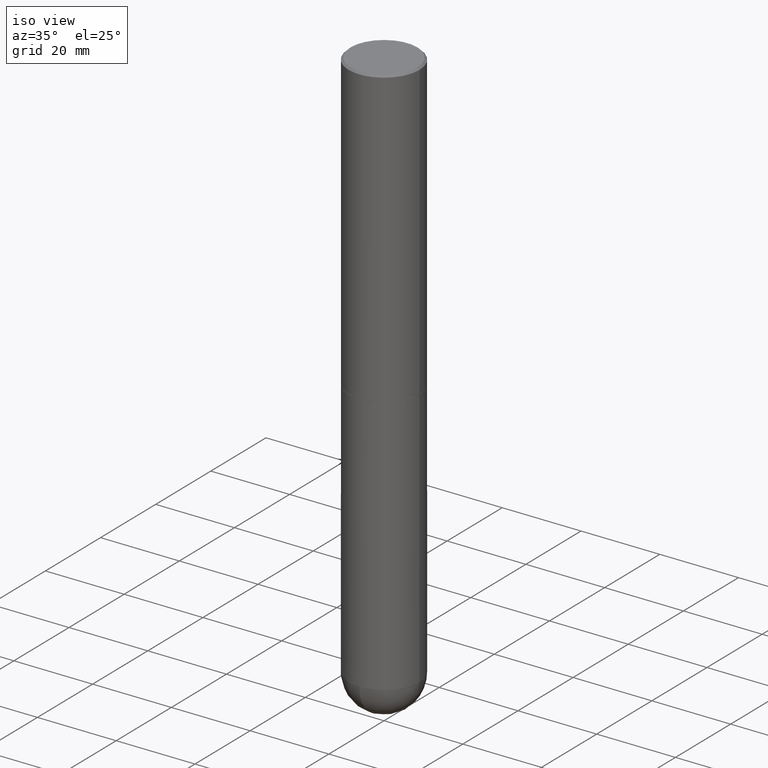
[diagram: clean part render]
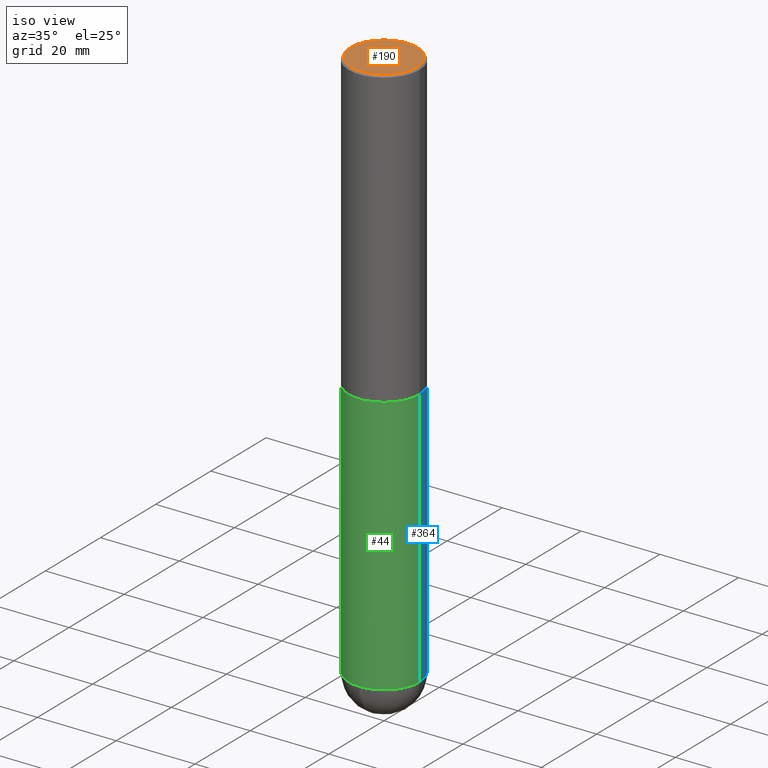
[diagram: same view with three faces highlighted in distinct colors, each labeled with its STEP entity id]
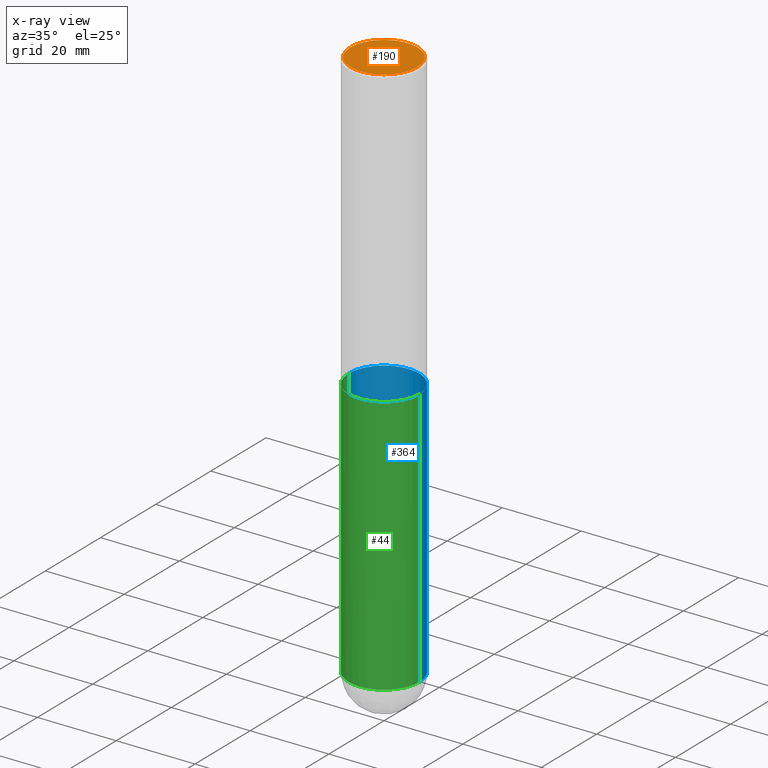
[diagram: x-ray of the same camera — body ghosted, the three highlighted faces saturated]
A machine part, iso view with three faces highlighted in distinct colors.
The next image is the same camera in x-ray (body ghosted, the three faces saturated) — at least one of them is partly hidden behind the body in this view.
Their STEP definitions:

[orange] entity #190 — the highlighted planar face has unit normal (0, -0, -1).
#3 = AXIS2_PLACEMENT_3D ( 'NONE', #348, #240, #249 ) ;
#23 = CARTESIAN_POINT ( 'NONE',  ( 0.3343500000000000916, -2.397327298921059104E-15, -7.683322482179085543E-17 ) ) ;
#24 = DIRECTION ( 'NONE',  ( -2.445468806185136597E-29, 3.491481338843145583E-15, 1.000000000000000000 ) ) ;
#29 = EDGE_CURVE ( 'NONE', #263, #80, #273, .T. ) ;
#80 = VERTEX_POINT ( 'NONE', #23 ) ;
#127 = DIRECTION ( 'NONE',  ( 1.000000000000000000, -6.982962677686267499E-15, 4.875777752381876907E-29 ) ) ;
#133 = DIRECTION ( 'NONE',  ( -1.000000000000000000, 6.982962677686265922E-15, -4.876176775795935793E-29 ) ) ;
#157 = AXIS2_PLACEMENT_3D ( 'NONE', #406, #378, #133 ) ;
#158 = ORIENTED_EDGE ( 'NONE', *, *, #293, .T. ) ;
#159 = AXIS2_PLACEMENT_3D ( 'NONE', #310, #24, #127 ) ;
#177 = ORIENTED_EDGE ( 'NONE', *, *, #29, .T. ) ;
#190 = ADVANCED_FACE ( 'NONE', ( #369 ), #280, .F. ) ;
#205 = EDGE_LOOP ( 'NONE', ( #177, #158 ) ) ;
#240 = DIRECTION ( 'NONE',  ( -2.445468806185136597E-29, 3.491481338843145583E-15, 1.000000000000000000 ) ) ;
#241 = CIRCLE ( 'NONE', #159, 0.3343500000000000916 ) ;
#249 = DIRECTION ( 'NONE',  ( 1.000000000000000000, -6.982962677686267499E-15, 4.875777752381876907E-29 ) ) ;
#263 = VERTEX_POINT ( 'NONE', #405 ) ;
#273 = CIRCLE ( 'NONE', #3, 0.3343500000000000916 ) ;
#280 = PLANE ( 'NONE',  #157 ) ;
#293 = EDGE_CURVE ( 'NONE', #80, #263, #241, .T. ) ;
#310 = CARTESIAN_POINT ( 'NONE',  ( 1.878932545803395481E-45, -2.682617706684804906E-31, -7.683322482180740918E-17 ) ) ;
#348 = CARTESIAN_POINT ( 'NONE',  ( 1.878932545803395481E-45, -2.682617706684804906E-31, -7.683322482180740918E-17 ) ) ;
#369 = FACE_OUTER_BOUND ( 'NONE', #205, .T. ) ;
#378 = DIRECTION ( 'NONE',  ( 2.438088387897960049E-29, -3.491481338843145188E-15, -1.000000000000000000 ) ) ;
#405 = CARTESIAN_POINT ( 'NONE',  ( -0.3343500000000000916, 2.369668384672834141E-15, -7.683322482182385200E-17 ) ) ;
#406 = CARTESIAN_POINT ( 'NONE',  ( 2.334753571284403675E-15, 0.3343500000000000916, -1.205793398053109819E-15 ) ) ;

[blue] entity #364 — the highlighted cylindrical surface (partial cylindrical patch) has radius 9.0005 mm, axis along (-0, 0, 1).
#6 = CIRCLE ( 'NONE', #105, 0.3543499999999999983 ) ;
#28 = DIRECTION ( 'NONE',  ( -2.445468806185136597E-29, 3.491481338843145583E-15, 1.000000000000000000 ) ) ;
#31 = EDGE_CURVE ( 'NONE', #49, #382, #62, .T. ) ;
#36 = ORIENTED_EDGE ( 'NONE', *, *, #171, .T. ) ;
#38 = AXIS2_PLACEMENT_3D ( 'NONE', #153, #308, #244 ) ;
#49 = VERTEX_POINT ( 'NONE', #187 ) ;
#51 = CYLINDRICAL_SURFACE ( 'NONE', #296, 0.3543499999999999983 ) ;
#55 = EDGE_CURVE ( 'NONE', #297, #188, #408, .T. ) ;
#62 = LINE ( 'NONE', #89, #377 ) ;
#79 = VECTOR ( 'NONE', #101, 39.37007874015748143 ) ;
#84 = FACE_OUTER_BOUND ( 'NONE', #302, .T. ) ;
#89 = CARTESIAN_POINT ( 'NONE',  ( 0.3543499999999999983, -2.474412824838128694E-15, 1.727873240503289749E-29 ) ) ;
#101 = DIRECTION ( 'NONE',  ( -2.445468806185136877E-29, 3.491481338843145188E-15, 1.000000000000000000 ) ) ;
#105 = AXIS2_PLACEMENT_3D ( 'NONE', #155, #120, #368 ) ;
#120 = DIRECTION ( 'NONE',  ( -2.445468806185136597E-29, 3.491481338843145583E-15, 1.000000000000000000 ) ) ;
#121 = CARTESIAN_POINT ( 'NONE',  ( -0.3543499999999999428, -1.232770860749472642E-14, -5.551149999999999807 ) ) ;
#130 = LINE ( 'NONE', #311, #79 ) ;
#148 = ORIENTED_EDGE ( 'NONE', *, *, #55, .T. ) ;
#153 = CARTESIAN_POINT ( 'NONE',  ( 1.357516416345461774E-28, -1.938173663411912545E-14, -5.551149999999999807 ) ) ;
#155 = CARTESIAN_POINT ( 'NONE',  ( 7.220735744022852519E-29, -1.030929694920215502E-14, -2.952700000000000102 ) ) ;
#171 = EDGE_CURVE ( 'NONE', #188, #185, #130, .T. ) ;
#185 = VERTEX_POINT ( 'NONE', #284 ) ;
#187 = CARTESIAN_POINT ( 'NONE',  ( 0.3543499999999999428, -1.731992961649876932E-14, -5.551149999999999807 ) ) ;
#188 = VERTEX_POINT ( 'NONE', #121 ) ;
#200 = ORIENTED_EDGE ( 'NONE', *, *, #242, .T. ) ;
#222 = EDGE_CURVE ( 'NONE', #382, #185, #6, .T. ) ;
#242 = EDGE_CURVE ( 'NONE', #49, #297, #262, .T. ) ;
#244 = DIRECTION ( 'NONE',  ( 1.000000000000000000, -6.982962677686261189E-15, 0.000000000000000000 ) ) ;
#245 = DIRECTION ( 'NONE',  ( 1.000000000000000000, -6.982962677686261189E-15, 0.000000000000000000 ) ) ;
#262 = CIRCLE ( 'NONE', #307, 0.3543499999999999428 ) ;
#270 = CARTESIAN_POINT ( 'NONE',  ( 0.3543499999999999983, -1.278370977404028332E-14, -2.952700000000000102 ) ) ;
#284 = CARTESIAN_POINT ( 'NONE',  ( -0.3543499999999999983, -1.232770860749472484E-14, -2.952700000000000102 ) ) ;
#296 = AXIS2_PLACEMENT_3D ( 'NONE', #313, #28, #396 ) ;
#297 = VERTEX_POINT ( 'NONE', #365 ) ;
#302 = EDGE_LOOP ( 'NONE', ( #148, #36, #384, #315, #200 ) ) ;
#307 = AXIS2_PLACEMENT_3D ( 'NONE', #398, #337, #245 ) ;
#308 = DIRECTION ( 'NONE',  ( -2.445468806185136597E-29, 3.491481338843145583E-15, 1.000000000000000000 ) ) ;
#311 = CARTESIAN_POINT ( 'NONE',  ( -0.3543499999999999983, 2.517808184165914997E-15, -1.743024649231826066E-29 ) ) ;
#313 = CARTESIAN_POINT ( 'NONE',  ( 0.000000000000000000, 0.000000000000000000, 0.000000000000000000 ) ) ;
#315 = ORIENTED_EDGE ( 'NONE', *, *, #31, .F. ) ;
#337 = DIRECTION ( 'NONE',  ( -2.445468806185136597E-29, 3.491481338843145583E-15, 1.000000000000000000 ) ) ;
#340 = DIRECTION ( 'NONE',  ( -2.445468806185136877E-29, 3.491481338843145188E-15, 1.000000000000000000 ) ) ;
#364 = ADVANCED_FACE ( 'NONE', ( #84 ), #51, .T. ) ;
#365 = CARTESIAN_POINT ( 'NONE',  ( 2.474412824838263195E-15, 0.3543499999999804584, -5.551150000000000695 ) ) ;
#368 = DIRECTION ( 'NONE',  ( 1.000000000000000000, -6.982962677686265922E-15, 0.000000000000000000 ) ) ;
#377 = VECTOR ( 'NONE', #340, 39.37007874015748143 ) ;
#382 = VERTEX_POINT ( 'NONE', #270 ) ;
#384 = ORIENTED_EDGE ( 'NONE', *, *, #222, .F. ) ;
#396 = DIRECTION ( 'NONE',  ( 1.000000000000000000, -6.982962677686266711E-15, 4.876176775795935793E-29 ) ) ;
#398 = CARTESIAN_POINT ( 'NONE',  ( 1.357516416345461774E-28, -1.938173663411912545E-14, -5.551149999999999807 ) ) ;
#408 = CIRCLE ( 'NONE', #38, 0.3543499999999999428 ) ;

[green] entity #44 — the highlighted cylindrical surface (partial cylindrical patch) has radius 9.0005 mm, axis along (-0, 0, 1).
#8 = CIRCLE ( 'NONE', #152, 0.3543499999999999983 ) ;
#18 = EDGE_CURVE ( 'NONE', #112, #49, #343, .T. ) ;
#31 = EDGE_CURVE ( 'NONE', #49, #382, #62, .T. ) ;
#44 = ADVANCED_FACE ( 'NONE', ( #123 ), #224, .T. ) ;
#49 = VERTEX_POINT ( 'NONE', #187 ) ;
#56 = DIRECTION ( 'NONE',  ( 1.000000000000000000, -6.982962677686261189E-15, 0.000000000000000000 ) ) ;
#61 = DIRECTION ( 'NONE',  ( 1.000000000000000000, -6.982962677686265922E-15, 0.000000000000000000 ) ) ;
#62 = LINE ( 'NONE', #89, #377 ) ;
#79 = VECTOR ( 'NONE', #101, 39.37007874015748143 ) ;
#82 = ORIENTED_EDGE ( 'NONE', *, *, #171, .F. ) ;
#83 = CARTESIAN_POINT ( 'NONE',  ( 1.357516416345461774E-28, -1.938173663411912545E-14, -5.551149999999999807 ) ) ;
#88 = DIRECTION ( 'NONE',  ( -2.445468806185136597E-29, 3.491481338843145583E-15, 1.000000000000000000 ) ) ;
#89 = CARTESIAN_POINT ( 'NONE',  ( 0.3543499999999999983, -2.474412824838128694E-15, 1.727873240503289749E-29 ) ) ;
#97 = DIRECTION ( 'NONE',  ( -2.445468806185136597E-29, 3.491481338843145583E-15, 1.000000000000000000 ) ) ;
#101 = DIRECTION ( 'NONE',  ( -2.445468806185136877E-29, 3.491481338843145188E-15, 1.000000000000000000 ) ) ;
#112 = VERTEX_POINT ( 'NONE', #161 ) ;
#114 = ORIENTED_EDGE ( 'NONE', *, *, #18, .T. ) ;
#118 = ORIENTED_EDGE ( 'NONE', *, *, #287, .T. ) ;
#121 = CARTESIAN_POINT ( 'NONE',  ( -0.3543499999999999428, -1.232770860749472642E-14, -5.551149999999999807 ) ) ;
#122 = CARTESIAN_POINT ( 'NONE',  ( 1.357516416345461774E-28, -1.938173663411912545E-14, -5.551149999999999807 ) ) ;
#123 = FACE_OUTER_BOUND ( 'NONE', #265, .T. ) ;
#130 = LINE ( 'NONE', #311, #79 ) ;
#152 = AXIS2_PLACEMENT_3D ( 'NONE', #183, #347, #61 ) ;
#161 = CARTESIAN_POINT ( 'NONE',  ( -2.517808184165781285E-15, -0.3543500000000196493, -5.551149999999998919 ) ) ;
#165 = AXIS2_PLACEMENT_3D ( 'NONE', #246, #97, #305 ) ;
#171 = EDGE_CURVE ( 'NONE', #188, #185, #130, .T. ) ;
#183 = CARTESIAN_POINT ( 'NONE',  ( 7.220735744022852519E-29, -1.030929694920215502E-14, -2.952700000000000102 ) ) ;
#185 = VERTEX_POINT ( 'NONE', #284 ) ;
#187 = CARTESIAN_POINT ( 'NONE',  ( 0.3543499999999999428, -1.731992961649876932E-14, -5.551149999999999807 ) ) ;
#188 = VERTEX_POINT ( 'NONE', #121 ) ;
#193 = CIRCLE ( 'NONE', #358, 0.3543499999999999428 ) ;
#208 = DIRECTION ( 'NONE',  ( -2.445468806185136597E-29, 3.491481338843145583E-15, 1.000000000000000000 ) ) ;
#224 = CYLINDRICAL_SURFACE ( 'NONE', #165, 0.3543499999999999983 ) ;
#246 = CARTESIAN_POINT ( 'NONE',  ( 0.000000000000000000, 0.000000000000000000, 0.000000000000000000 ) ) ;
#265 = EDGE_LOOP ( 'NONE', ( #82, #118, #114, #331, #397 ) ) ;
#270 = CARTESIAN_POINT ( 'NONE',  ( 0.3543499999999999983, -1.278370977404028332E-14, -2.952700000000000102 ) ) ;
#284 = CARTESIAN_POINT ( 'NONE',  ( -0.3543499999999999983, -1.232770860749472484E-14, -2.952700000000000102 ) ) ;
#287 = EDGE_CURVE ( 'NONE', #188, #112, #193, .T. ) ;
#289 = AXIS2_PLACEMENT_3D ( 'NONE', #83, #208, #399 ) ;
#305 = DIRECTION ( 'NONE',  ( 1.000000000000000000, -6.982962677686266711E-15, 4.876176775795935793E-29 ) ) ;
#311 = CARTESIAN_POINT ( 'NONE',  ( -0.3543499999999999983, 2.517808184165914997E-15, -1.743024649231826066E-29 ) ) ;
#331 = ORIENTED_EDGE ( 'NONE', *, *, #31, .T. ) ;
#340 = DIRECTION ( 'NONE',  ( -2.445468806185136877E-29, 3.491481338843145188E-15, 1.000000000000000000 ) ) ;
#343 = CIRCLE ( 'NONE', #289, 0.3543499999999999428 ) ;
#347 = DIRECTION ( 'NONE',  ( -2.445468806185136597E-29, 3.491481338843145583E-15, 1.000000000000000000 ) ) ;
#358 = AXIS2_PLACEMENT_3D ( 'NONE', #122, #88, #56 ) ;
#359 = EDGE_CURVE ( 'NONE', #185, #382, #8, .T. ) ;
#377 = VECTOR ( 'NONE', #340, 39.37007874015748143 ) ;
#382 = VERTEX_POINT ( 'NONE', #270 ) ;
#397 = ORIENTED_EDGE ( 'NONE', *, *, #359, .F. ) ;
#399 = DIRECTION ( 'NONE',  ( 1.000000000000000000, -6.982962677686261189E-15, 0.000000000000000000 ) ) ;